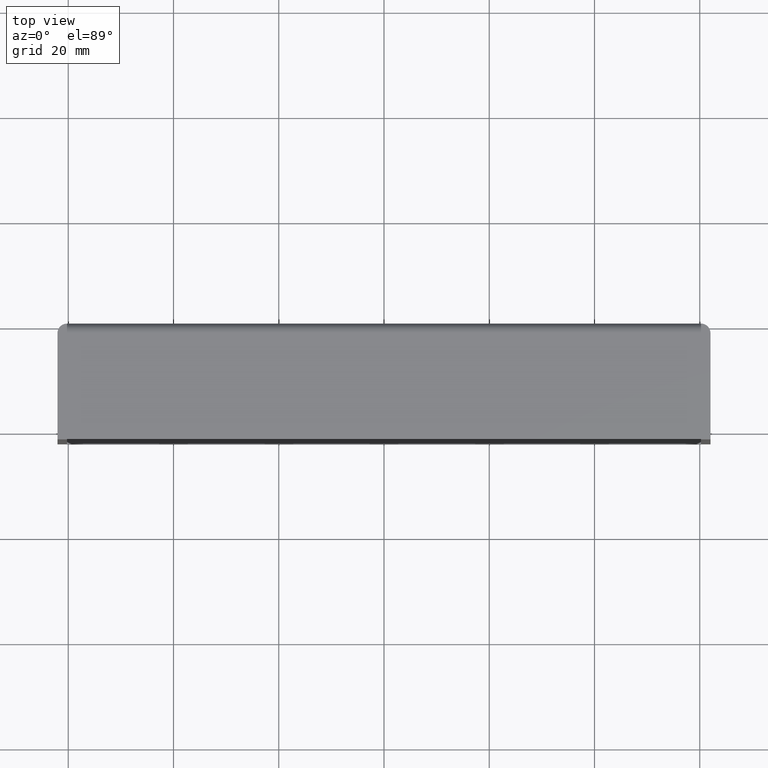
[diagram: clean part render]
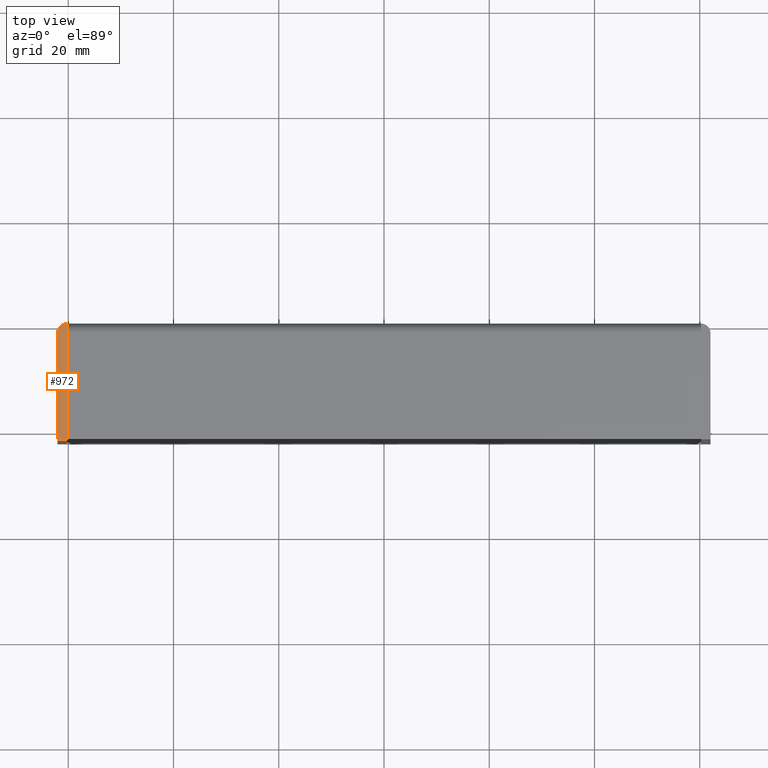
[diagram: same view with one face highlighted and labeled with its STEP entity id]
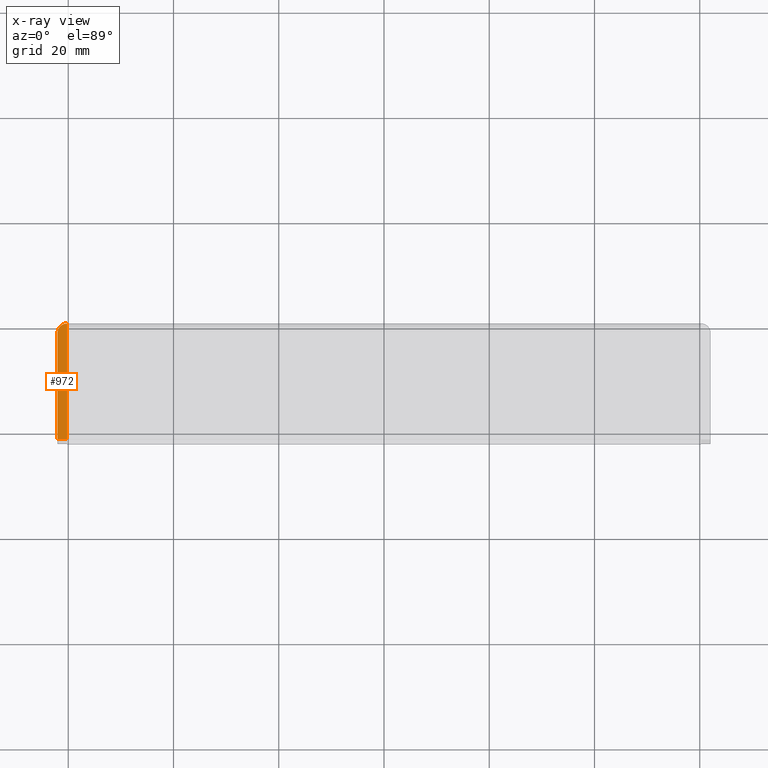
[diagram: x-ray of the same camera — body ghosted, the highlighted face saturated]
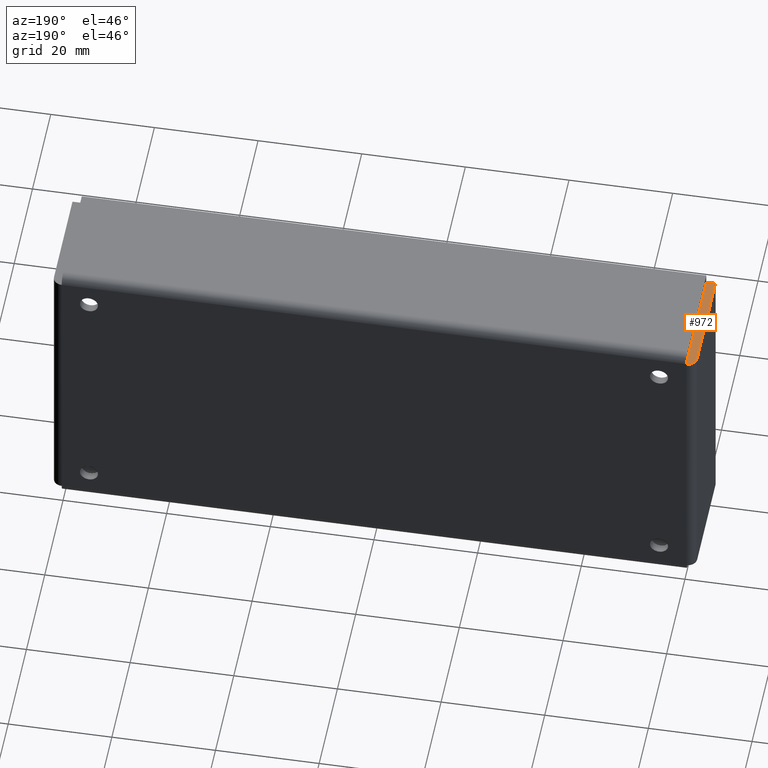
[diagram: same view with one face highlighted and labeled with its STEP entity id]
A machine part, top view. The second image highlights one B-rep face of the part: STEP entity #972.
The next image is the same camera in x-ray: the body ghosted, the highlighted face saturated — about 0% of this face is hidden behind the body in this view.
A second angle (auxiliary view) of the same face is appended — the face is thin or edge-on in the first view.
In plain terms, the highlighted face is a freeform B-spline surface patch.
Its self-contained STEP definition (entity closure, byte-faithful):
#847=CARTESIAN_POINT('',(-60.250000000000000,0.0,27.500000000000000));
#848=VERTEX_POINT('',#847);
#849=CARTESIAN_POINT('',(-62.049999999999997,-1.800000000000025,27.500000000000000));
#850=VERTEX_POINT('',#849);
#851=CARTESIAN_POINT('',(-60.250000000000000,-2.493665E-014,27.500000000000000));
#852=CARTESIAN_POINT('',(-62.050000000000018,-2.493665E-014,27.499999999999993));
#853=CARTESIAN_POINT('',(-62.049999999999997,-1.800000000000025,27.500000000000000));
#861=(BOUNDED_CURVE()B_SPLINE_CURVE(2,(#851,#852,#853),.UNSPECIFIED.,.F.,.U.)CURVE()GEOMETRIC_REPRESENTATION_ITEM()QUASI_UNIFORM_CURVE()RATIONAL_B_SPLINE_CURVE((1.0,0.707106781186547,1.0))REPRESENTATION_ITEM(''));
#862=EDGE_CURVE('',#848,#850,#861,.T.);
#908=CARTESIAN_POINT('',(-60.250000000000000,-22.0,27.500000000000000));
#909=VERTEX_POINT('',#908);
#915=CARTESIAN_POINT('',(-62.049999999999997,-22.0,27.500000000000000));
#916=VERTEX_POINT('',#915);
#917=CARTESIAN_POINT('',(-60.250000000000000,-22.0,27.500000000000000));
#918=CARTESIAN_POINT('',(-62.049999999999997,-22.0,27.500000000000000));
#919=QUASI_UNIFORM_CURVE('',1,(#917,#918),.UNSPECIFIED.,.F.,.U.);
#920=EDGE_CURVE('',#909,#916,#919,.T.);
#935=CARTESIAN_POINT('',(-62.049999999999997,-22.0,27.500000000000000));
#936=CARTESIAN_POINT('',(-62.049999999999997,-1.800000000000025,27.500000000000000));
#937=QUASI_UNIFORM_CURVE('',1,(#935,#936),.UNSPECIFIED.,.F.,.U.);
#938=EDGE_CURVE('',#916,#850,#937,.T.);
#950=CARTESIAN_POINT('',(-60.160090042073932,-23.098899957359730,27.500000000000000));
#951=CARTESIAN_POINT('',(-62.139909233729647,-23.098899957359730,27.500000000000000));
#952=CARTESIAN_POINT('',(-60.160090042073932,1.098900547445715,27.500000000000000));
#953=CARTESIAN_POINT('',(-62.139909233729647,1.098900547445715,27.500000000000000));
#954=B_SPLINE_SURFACE_WITH_KNOTS('',1,1,((#950,#952),(#951,#953)),.UNSPECIFIED.,.F.,.F.,.U.,(2,2),(2,2),(0.0,1.979819191655714),(0.0,24.197800504805450),.UNSPECIFIED.);
#955=CARTESIAN_POINT('',(-60.250000000000000,-1.600000000000045,27.500000000000000));
#956=VERTEX_POINT('',#955);
#957=CARTESIAN_POINT('',(-60.250000000000000,-1.600000000000045,27.500000000000000));
#958=CARTESIAN_POINT('',(-60.250000000000000,0.0,27.500000000000000));
#959=QUASI_UNIFORM_CURVE('',1,(#957,#958),.UNSPECIFIED.,.F.,.U.);
#960=EDGE_CURVE('',#956,#848,#959,.T.);
#961=ORIENTED_EDGE('',*,*,#960,.T.);
#962=ORIENTED_EDGE('',*,*,#862,.T.);
#963=ORIENTED_EDGE('',*,*,#938,.F.);
#964=ORIENTED_EDGE('',*,*,#920,.F.);
#965=CARTESIAN_POINT('',(-60.250000000000000,-22.0,27.500000000000000));
#966=CARTESIAN_POINT('',(-60.250000000000000,-1.600000000000045,27.500000000000000));
#967=QUASI_UNIFORM_CURVE('',1,(#965,#966),.UNSPECIFIED.,.F.,.U.);
#968=EDGE_CURVE('',#909,#956,#967,.T.);
#969=ORIENTED_EDGE('',*,*,#968,.T.);
#970=EDGE_LOOP('',(#961,#962,#963,#964,#969));
#971=FACE_OUTER_BOUND('',#970,.T.);
#972=ADVANCED_FACE('',(#971),#954,.F.);